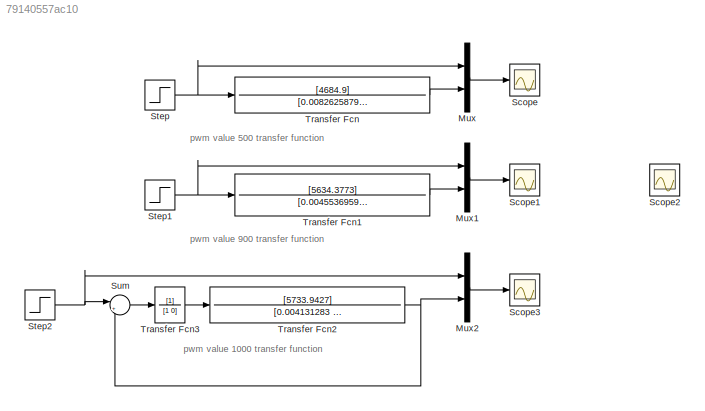
MODEL slx_79140557ac10
KIND model
CONFIG AbsTol = auto
CONFIG FixedStep = 0.005
CONFIG MaxStep = auto
CONFIG MinStep = auto
CONFIG RelTol = 1e-3
CONFIG SampleTimeConstraint = Unconstrained
CONFIG Solver = FixedStepAuto
CONFIG SolverMode = Auto
CONFIG SolverName = FixedStepAuto
CONFIG StartTime = 0.0
CONFIG StopTime = 30
BLOCK [Mux] Mux
  DisplayOption = bar
  Inputs = 2
  Ports = [2, 1]
BLOCK [Mux] Mux1
  DisplayOption = bar
  Inputs = 2
  Ports = [2, 1]
BLOCK [Mux] Mux2
  DisplayOption = bar
  Inputs = 2
  Ports = [2, 1]
BLOCK [Scope] Scope
  Ports = [1]
  ScopeSpecificationString = Simulink.scopes.TimeScopeBlockCfg('CurrentConfiguration', extmgr.ConfigurationSet(extmgr.Configuration('Core','General UI',true),extmgr.Configuration('Core','Source UI',true),extmgr.Configuration('Sources','WiredSimulink',true),extmgr.Configuration('Visuals','Time Domain',true,'SerializedDisplays',{struct('MinYLimReal','-2423.85014','MaxYLimReal','21814.65124','YLabelReal','','MinYLimMag','  0.000...<+1394ch>
BLOCK [Scope] Scope1
  Ports = [1]
  ScopeSpecificationString = Simulink.scopes.TimeScopeBlockCfg('CurrentConfiguration', extmgr.ConfigurationSet(extmgr.Configuration('Core','General UI',true),extmgr.Configuration('Core','Source UI',true),extmgr.Configuration('Sources','WiredSimulink',true,'DataLoggingVariableName','ScopeData1'),extmgr.Configuration('Visuals','Time Domain',true,'SerializedDisplays',{struct('MinYLimReal','-5247.51693','MaxYLimReal','47227.65237...<+1436ch>
BLOCK [Scope] Scope2
  Ports = [1]
  ScopeSpecificationString = Simulink.scopes.TimeScopeBlockCfg('CurrentConfiguration', extmgr.ConfigurationSet(extmgr.Configuration('Core','General UI',true),extmgr.Configuration('Core','Source UI',true),extmgr.Configuration('Sources','WiredSimulink',true,'DataLoggingVariableName','ScopeData2'),extmgr.Configuration('Visuals','Time Domain',true,'SerializedDisplays',{struct('MinYLimReal','-1.00000','MaxYLimReal','1.00000','YLab...<+1397ch>
BLOCK [Scope] Scope3
  Ports = [1]
  ScopeSpecificationString = Simulink.scopes.TimeScopeBlockCfg('CurrentConfiguration', extmgr.ConfigurationSet(extmgr.Configuration('Core','General UI',true),extmgr.Configuration('Core','Source UI',true),extmgr.Configuration('Sources','WiredSimulink',true,'DataLoggingVariableName','ScopeData3'),extmgr.Configuration('Visuals','Time Domain',true,'SerializedDisplays',{struct('MinYLimReal','-71470561632173093000000000000000000000...<+3868ch>
BLOCK [Step] Step
  After = 4.139
  SampleTime = 0.005
  Time = 0.11
BLOCK [Step] Step1
  After = 11.59*900/1400
  SampleTime = 0.005
  Time = 0.11
BLOCK [Step] Step2
  After = 4.139
  SampleTime = 0.005
  Time = 0.11
BLOCK [Sum] Sum
  IconShape = round
  InputSameDT = off
  Inputs = |+-
  OutDataTypeStr = Inherit: Inherit via internal rule
  Ports = [2, 1]
  SaturateOnIntegerOverflow = off
BLOCK [TransferFcn] Transfer Fcn
  Denominator = [0.00826258795  0.233603 1]
  Numerator = [4684.9]
BLOCK [TransferFcn] Transfer Fcn1
  Denominator = [0.00455369593  0.165739 1]
  Numerator = [5634.3773]
BLOCK [TransferFcn] Transfer Fcn2
  Denominator = [0.004131283  0.15629 1]
  Numerator = [5733.9427]
BLOCK [TransferFcn] Transfer Fcn3
  Denominator = [1 0]
ANNOTATION (root): pwm value 1000 transfer function
ANNOTATION (root): pwm value 500 transfer function
ANNOTATION (root): pwm value 900 transfer function
LINE Mux1:1 -> Scope1:1
LINE Mux2:1 -> Scope3:1
LINE Mux:1 -> Scope:1
NET Step1:1 -> Mux1:1, Transfer Fcn1:1
NET Step2:1 -> Mux2:1, Sum:1
NET Step:1 -> Mux:1, Transfer Fcn:1
LINE Sum:1 -> Transfer Fcn3:1
LINE Transfer Fcn1:1 -> Mux1:2
NET Transfer Fcn2:1 -> Mux2:2, Sum:2
LINE Transfer Fcn3:1 -> Transfer Fcn2:1
LINE Transfer Fcn:1 -> Mux:2
note: NET lines group one-source signal fan-out (src -> all destinations, sorted); 1:1 wires keep LINE
